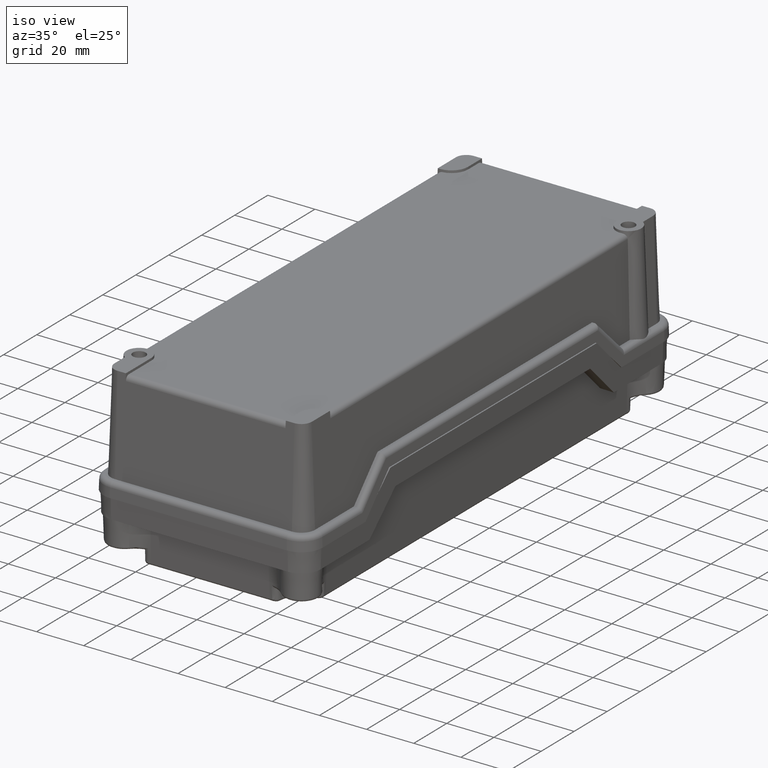
[diagram: clean part render]
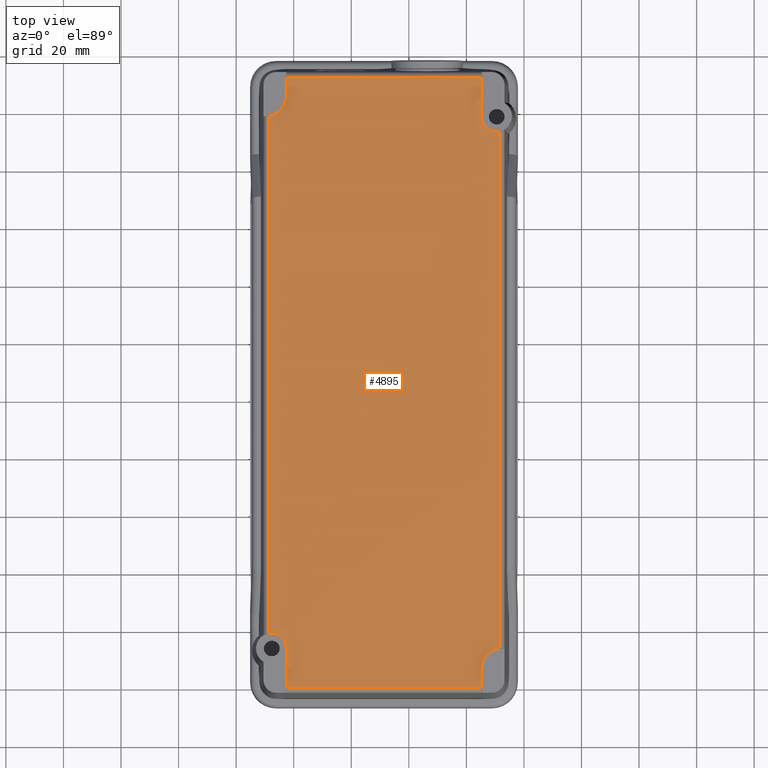
[diagram: tour spotlight — one face highlighted and labeled with its STEP entity id]
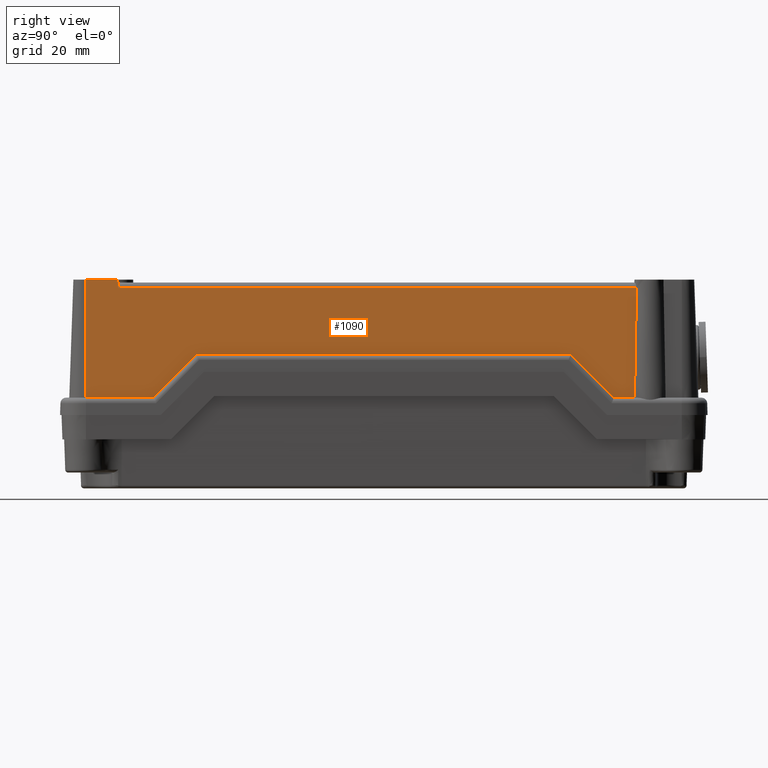
[diagram: tour spotlight — one face highlighted and labeled with its STEP entity id]
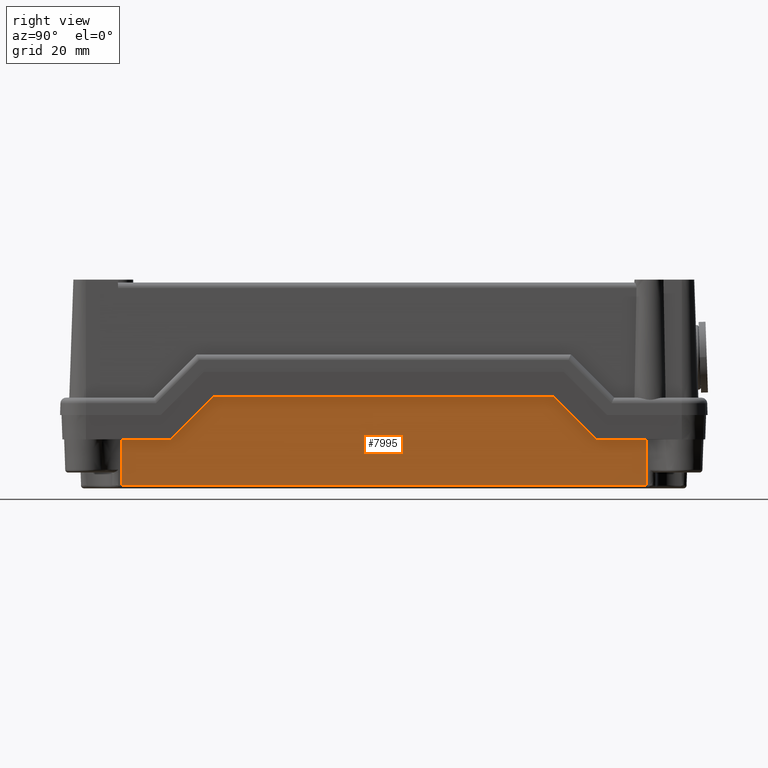
[diagram: tour spotlight — one face highlighted and labeled with its STEP entity id]
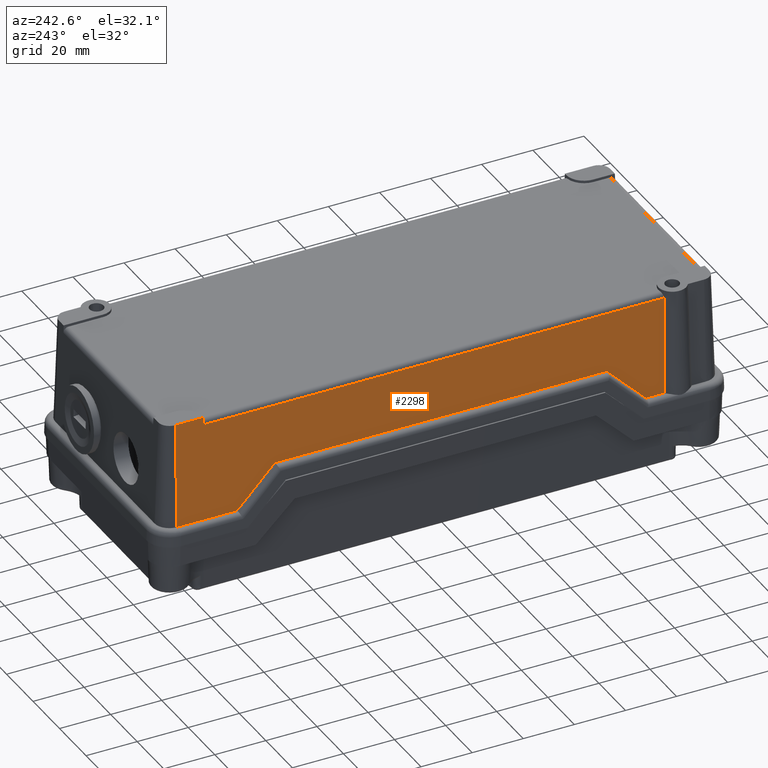
[diagram: tour spotlight — one face highlighted and labeled with its STEP entity id]
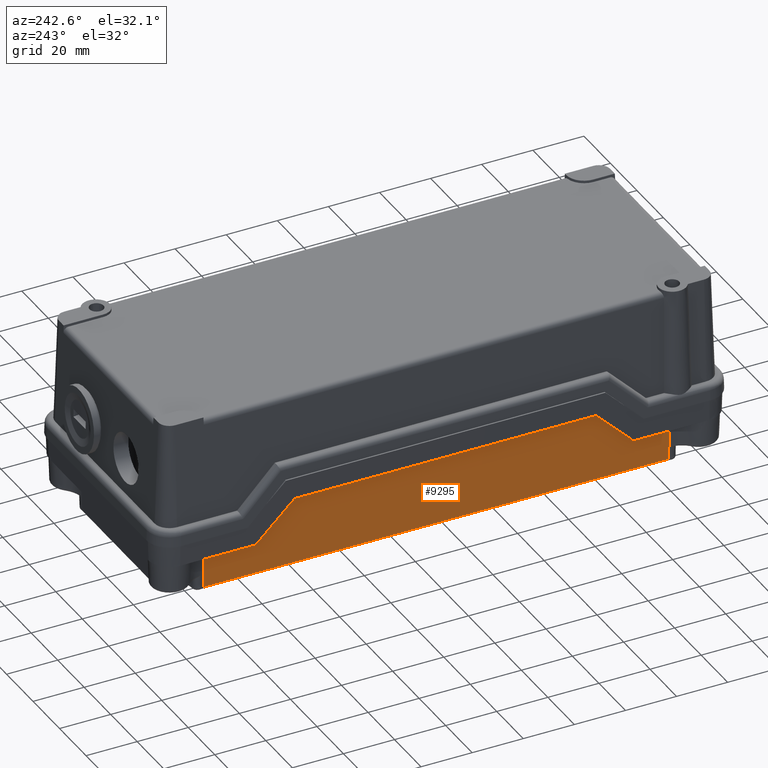
[diagram: tour spotlight — one face highlighted and labeled with its STEP entity id]
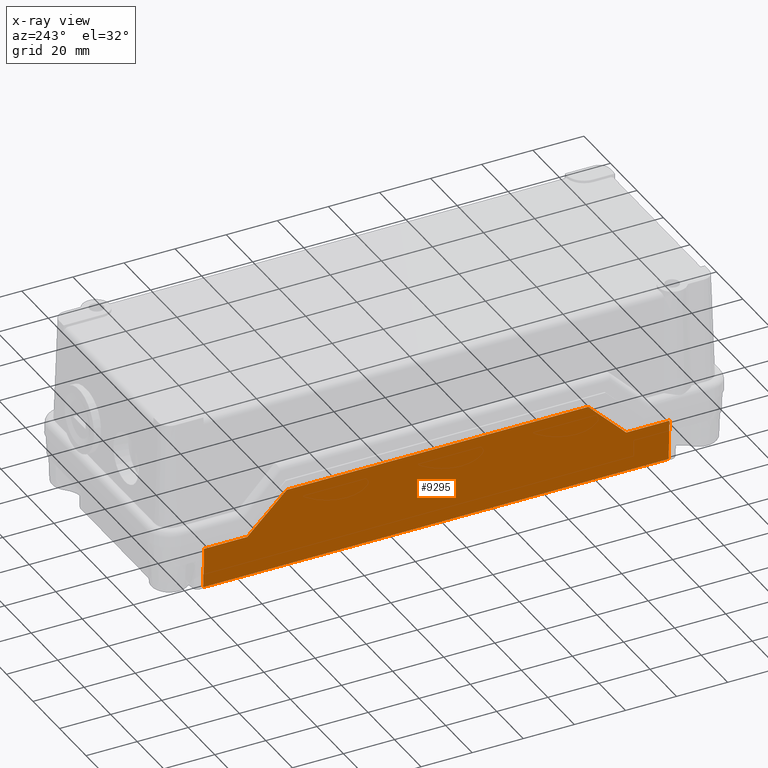
[diagram: x-ray of the same camera — body ghosted, this tour face saturated]
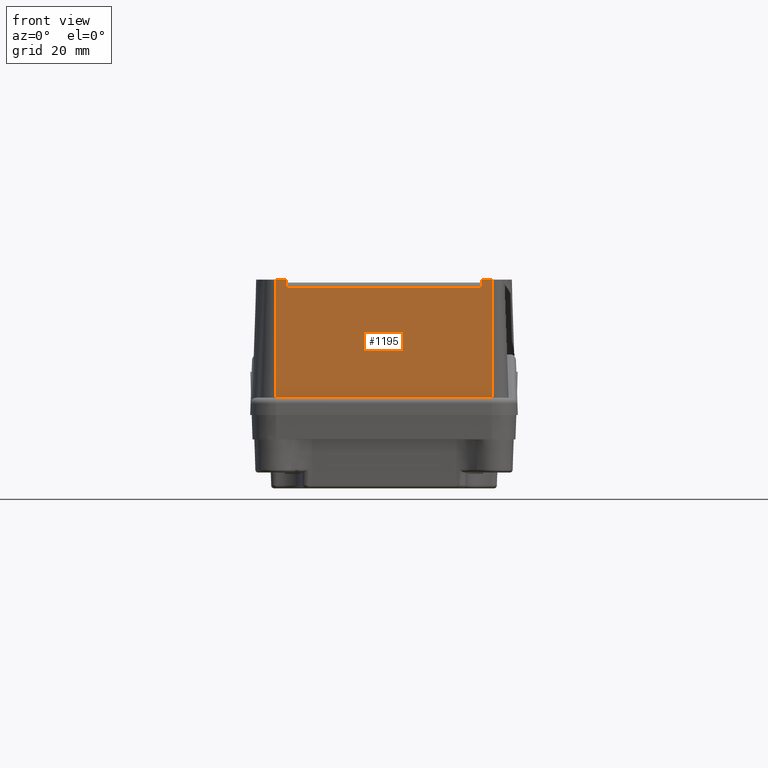
[diagram: tour spotlight — one face highlighted and labeled with its STEP entity id]
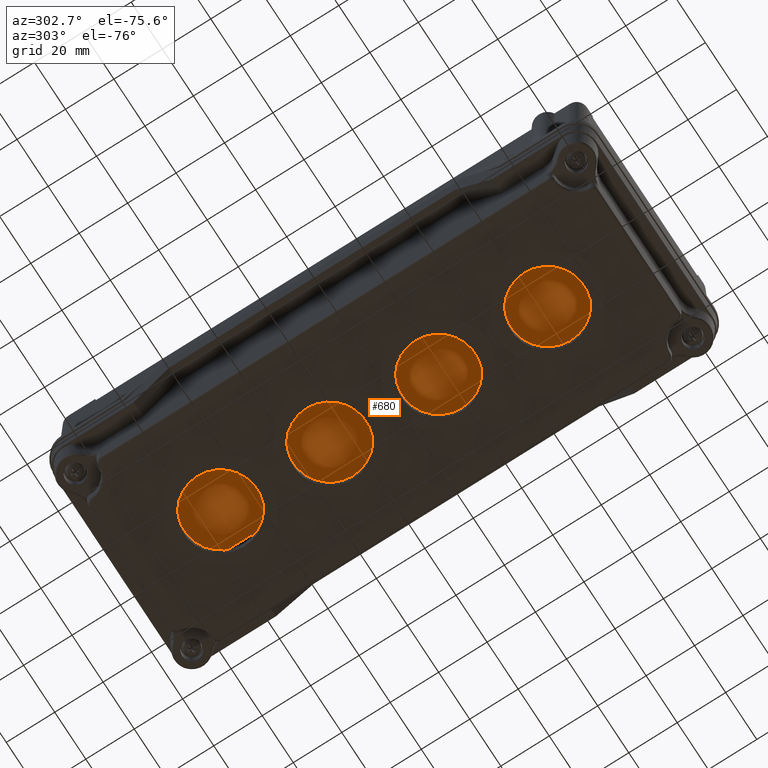
[diagram: tour spotlight — one face highlighted and labeled with its STEP entity id]
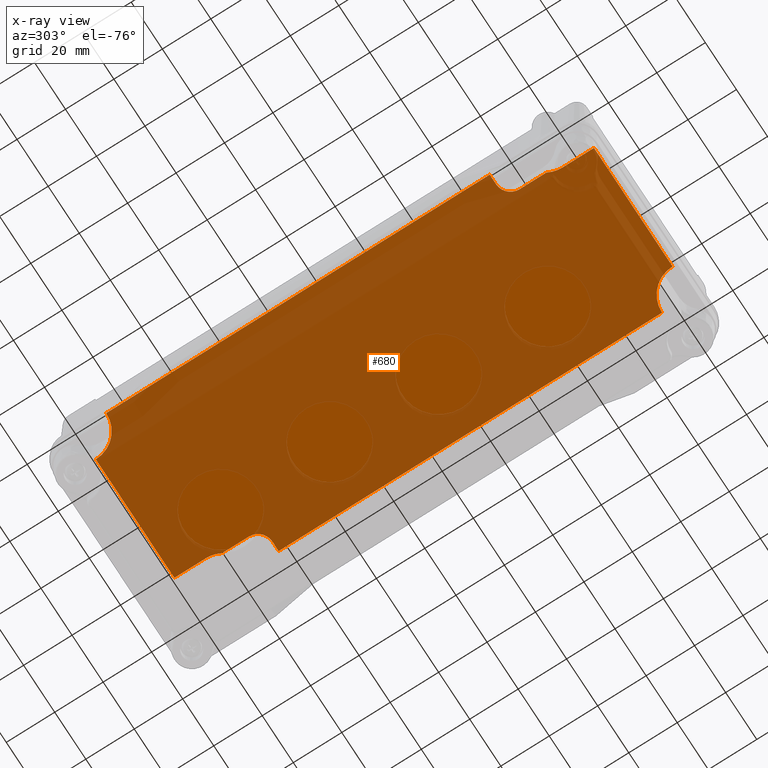
[diagram: x-ray of the same camera — body ghosted, this tour face saturated]
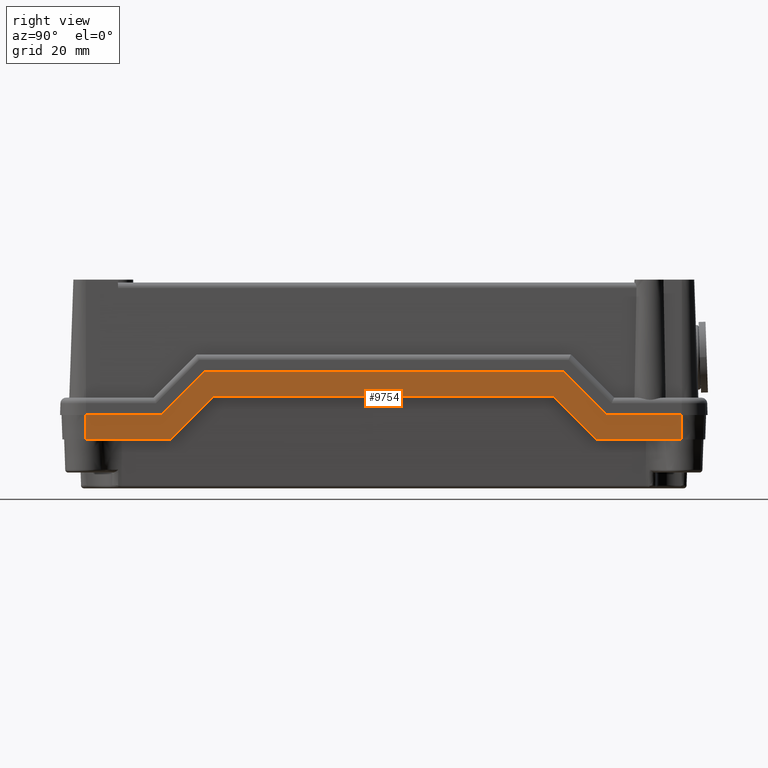
[diagram: tour spotlight — one face highlighted and labeled with its STEP entity id]
A machine part: a face-by-face anatomy tour. The part has 515 B-rep faces; the first image is the clean iso view, then the 8 largest visible faces are spotlighted one at a time (largest first), each with its STEP entity span.

Face 1 — top view, entity #4895. In plain terms, the highlighted planar face has unit normal (0, 0, 1).
Definition (entity closure, byte-faithful):
#834=CARTESIAN_POINT('',(65.278736166263982,191.561854063201880,46.000000000000007));
#835=VERTEX_POINT('',#834);
#853=CARTESIAN_POINT('',(-2.508553040495264,191.561854063201910,46.000000000000007));
#854=VERTEX_POINT('',#853);
#862=CARTESIAN_POINT('',(-2.508553040495264,191.561854063201910,46.000000000000007));
#863=DIRECTION('',(1.0,0.0,0.0));
#864=VECTOR('',#863,67.787289206759240);
#865=LINE('',#862,#864);
#866=EDGE_CURVE('',#854,#835,#865,.T.);
#945=CARTESIAN_POINT('',(71.347358616649842,172.703747191197440,46.000000000000007));
#946=VERTEX_POINT('',#945);
#965=CARTESIAN_POINT('',(71.347358616649842,-6.856296005356006,46.000000000000007));
#966=VERTEX_POINT('',#965);
#967=CARTESIAN_POINT('',(71.347358616649842,172.703747191197440,46.000000000000007));
#968=DIRECTION('',(0.0,-1.0,0.0));
#969=VECTOR('',#968,179.560043196553440);
#970=LINE('',#967,#969);
#971=EDGE_CURVE('',#946,#966,#970,.T.);
#1096=CARTESIAN_POINT('',(-2.508553040495217,-20.362680044328968,46.000000000000007));
#1097=VERTEX_POINT('',#1096);
#1115=CARTESIAN_POINT('',(65.278736166263997,-20.362680044328968,46.000000000000007));
#1116=VERTEX_POINT('',#1115);
#1124=CARTESIAN_POINT('',(65.278736166263997,-20.362680044328968,46.000000000000007));
#1125=DIRECTION('',(-1.0,0.0,0.0));
#1126=VECTOR('',#1125,67.787289206759212);
#1127=LINE('',#1124,#1126);
#1128=EDGE_CURVE('',#1116,#1097,#1127,.T.);
#2162=CARTESIAN_POINT('',(-8.577175490881078,-1.504573172324474,46.000000000000007));
#2163=VERTEX_POINT('',#2162);
#2182=CARTESIAN_POINT('',(-8.577175490881114,178.055470024228950,46.000000000000007));
#2183=VERTEX_POINT('',#2182);
#2184=CARTESIAN_POINT('',(-8.577175490881078,-1.504573172324474,46.000000000000007));
#2185=DIRECTION('',(0.0,1.0,0.0));
#2186=VECTOR('',#2185,179.560043196553440);
#2187=LINE('',#2184,#2186);
#2188=EDGE_CURVE('',#2163,#2183,#2187,.T.);
#3880=CARTESIAN_POINT('',(65.278736166263968,177.880232871740650,46.000000000000007));
#3881=VERTEX_POINT('',#3880);
#3888=CARTESIAN_POINT('',(70.520797520908872,177.880232871740650,46.000000000000007));
#3889=DIRECTION('',(0.0,0.0,-1.0));
#3890=DIRECTION('',(-1.0,0.0,0.0));
#3891=AXIS2_PLACEMENT_3D('',#3888,#3889,#3890);
#3892=CIRCLE('',#3891,5.242061354644884);
#3893=EDGE_CURVE('',#946,#3881,#3892,.T.);
#3918=CARTESIAN_POINT('',(65.278736166263968,177.880232871740650,46.000000000000007));
#3919=DIRECTION('',(0.0,1.0,0.0));
#3920=VECTOR('',#3919,13.681621191461232);
#3921=LINE('',#3918,#3920);
#3922=EDGE_CURVE('',#3881,#835,#3921,.T.);
#3982=CARTESIAN_POINT('',(-2.508553040495225,-6.681058852867699,46.000000000000007));
#3983=VERTEX_POINT('',#3982);
#3990=CARTESIAN_POINT('',(-7.750614395140129,-6.681058852867703,46.000000000000007));
#3991=DIRECTION('',(0.0,0.0,-1.0));
#3992=DIRECTION('',(1.0,0.0,0.0));
#3993=AXIS2_PLACEMENT_3D('',#3990,#3991,#3992);
#3994=CIRCLE('',#3993,5.242061354644905);
#3995=EDGE_CURVE('',#2163,#3983,#3994,.T.);
#4020=CARTESIAN_POINT('',(-2.508553040495225,-6.681058852867699,46.000000000000007));
#4021=DIRECTION('',(0.0,-1.0,0.0));
#4022=VECTOR('',#4021,13.681621191461268);
#4023=LINE('',#4020,#4022);
#4024=EDGE_CURVE('',#3983,#1097,#4023,.T.);
#4081=CARTESIAN_POINT('',(-2.508553040495262,184.993231612816060,46.000000000000007));
#4082=VERTEX_POINT('',#4081);
#4089=CARTESIAN_POINT('',(-2.508553040495264,191.561854063201910,46.000000000000007));
#4090=DIRECTION('',(0.0,-1.0,0.0));
#4091=VECTOR('',#4090,6.568622450385846);
#4092=LINE('',#4089,#4091);
#4093=EDGE_CURVE('',#854,#4082,#4092,.T.);
#4121=CARTESIAN_POINT('',(-9.508553040495261,184.993231612816060,46.000000000000007));
#4122=DIRECTION('',(0.0,0.0,-1.0));
#4123=DIRECTION('',(0.0,-1.0,0.0));
#4124=AXIS2_PLACEMENT_3D('',#4121,#4122,#4123);
#4125=CIRCLE('',#4124,7.000000000000001);
#4126=EDGE_CURVE('',#4082,#2183,#4125,.T.);
#4182=CARTESIAN_POINT('',(65.278736166263997,-13.794057593943121,46.000000000000007));
#4183=VERTEX_POINT('',#4182);
#4190=CARTESIAN_POINT('',(65.278736166263997,-20.362680044328968,46.000000000000007));
#4191=DIRECTION('',(0.0,1.0,0.0));
#4192=VECTOR('',#4191,6.568622450385847);
#4193=LINE('',#4190,#4192);
#4194=EDGE_CURVE('',#1116,#4183,#4193,.T.);
#4222=CARTESIAN_POINT('',(72.278736166263997,-13.794057593943116,46.000000000000007));
#4223=DIRECTION('',(0.0,0.0,-1.0));
#4224=DIRECTION('',(0.0,1.0,0.0));
#4225=AXIS2_PLACEMENT_3D('',#4222,#4223,#4224);
#4226=CIRCLE('',#4225,7.000000000000001);
#4227=EDGE_CURVE('',#4183,#966,#4226,.T.);
#4876=CARTESIAN_POINT('',(31.385091562884369,85.599587009436462,46.000000000000007));
#4877=DIRECTION('',(0.0,0.0,1.0));
#4878=DIRECTION('',(1.0,0.0,0.0));
#4879=AXIS2_PLACEMENT_3D('',#4876,#4877,#4878);
#4880=PLANE('',#4879);
#4881=ORIENTED_EDGE('',*,*,#866,.F.);
#4882=ORIENTED_EDGE('',*,*,#4093,.T.);
#4883=ORIENTED_EDGE('',*,*,#4126,.T.);
#4884=ORIENTED_EDGE('',*,*,#2188,.F.);
#4885=ORIENTED_EDGE('',*,*,#3995,.T.);
#4886=ORIENTED_EDGE('',*,*,#4024,.T.);
#4887=ORIENTED_EDGE('',*,*,#1128,.F.);
#4888=ORIENTED_EDGE('',*,*,#4194,.T.);
#4889=ORIENTED_EDGE('',*,*,#4227,.T.);
#4890=ORIENTED_EDGE('',*,*,#971,.F.);
#4891=ORIENTED_EDGE('',*,*,#3893,.T.);
#4892=ORIENTED_EDGE('',*,*,#3922,.T.);
#4893=EDGE_LOOP('',(#4881,#4882,#4883,#4884,#4885,#4886,#4887,#4888,#4889,#4890,#4891,#4892));
#4894=FACE_OUTER_BOUND('',#4893,.T.);
#4895=ADVANCED_FACE('',(#4894),#4880,.T.);

Face 2 — right view, entity #1090. In plain terms, the highlighted planar face has unit normal (0.9994, 0, 0.0349).
Definition (entity closure, byte-faithful):
#985=CARTESIAN_POINT('',(73.346140270688039,-6.726653489519086,44.069798993405001));
#986=VERTEX_POINT('',#985);
#994=CARTESIAN_POINT('',(73.346140270688039,173.384910030896780,44.069798993405001));
#995=VERTEX_POINT('',#994);
#996=CARTESIAN_POINT('',(73.346140270688039,-6.726653489519086,44.069798993405001));
#997=DIRECTION('',(0.0,1.0,0.0));
#998=VECTOR('',#997,180.111563520415870);
#999=LINE('',#996,#998);
#1000=EDGE_CURVE('',#986,#995,#999,.T.);
#1012=CARTESIAN_POINT('',(73.278736166263997,-17.900412990563549,46.000000000000007));
#1013=DIRECTION('',(0.999390827019096,4.288103E-017,0.034899496702501));
#1014=DIRECTION('',(0.0,-1.0,0.0));
#1015=AXIS2_PLACEMENT_3D('',#1012,#1013,#1014);
#1016=PLANE('',#1015);
#1017=ORIENTED_EDGE('',*,*,#1000,.F.);
#1018=CARTESIAN_POINT('',(73.243815396772249,-6.828978363434865,47.0));
#1019=VERTEX_POINT('',#1018);
#1020=CARTESIAN_POINT('',(73.346140270688039,-6.726653489519086,44.069798993405001));
#1021=DIRECTION('',(-0.034878262742374,-0.034878262742371,0.998782765958718));
#1022=VECTOR('',#1021,2.933772093857003);
#1023=LINE('',#1020,#1022);
#1024=EDGE_CURVE('',#986,#1019,#1023,.T.);
#1025=ORIENTED_EDGE('',*,*,#1024,.T.);
#1026=CARTESIAN_POINT('',(73.243815396772249,-17.900412990563549,47.0));
#1027=VERTEX_POINT('',#1026);
#1028=CARTESIAN_POINT('',(73.243815396772249,-6.828978363434865,47.0));
#1029=DIRECTION('',(0.0,-1.0,0.0));
#1030=VECTOR('',#1029,11.071434627128685);
#1031=LINE('',#1028,#1030);
#1032=EDGE_CURVE('',#1019,#1027,#1031,.T.);
#1033=ORIENTED_EDGE('',*,*,#1032,.T.);
#1034=CARTESIAN_POINT('',(74.675566945933895,-17.900412990563549,6.000000000000005));
#1035=VERTEX_POINT('',#1034);
#1036=CARTESIAN_POINT('',(74.675566945933895,-17.900412990563549,6.000000000000005));
#1037=DIRECTION('',(-0.034899496702501,0.0,0.999390827019096));
#1038=VECTOR('',#1037,41.024991316251686);
#1039=LINE('',#1036,#1038);
#1040=EDGE_CURVE('',#1035,#1027,#1039,.T.);
#1041=ORIENTED_EDGE('',*,*,#1040,.F.);
#1042=CARTESIAN_POINT('',(74.675566945931934,5.598717935197845,6.000000000000001));
#1043=VERTEX_POINT('',#1042);
#1044=CARTESIAN_POINT('',(74.675566945933895,-17.900412990563549,6.000000000000005));
#1045=DIRECTION('',(0.0,1.0,0.0));
#1046=VECTOR('',#1045,23.499130925761392);
#1047=LINE('',#1044,#1046);
#1048=EDGE_CURVE('',#1035,#1043,#1047,.T.);
#1049=ORIENTED_EDGE('',*,*,#1048,.T.);
#1050=CARTESIAN_POINT('',(74.151211069077121,20.614305635197852,21.015587699999983));
#1051=VERTEX_POINT('',#1050);
#1052=CARTESIAN_POINT('',(74.675566945931934,5.598717935197845,6.000000000000001));
#1053=DIRECTION('',(-0.024685188407831,0.706891307583164,0.706891307583163));
#1054=VECTOR('',#1053,21.241720670378246);
#1055=LINE('',#1052,#1054);
#1056=EDGE_CURVE('',#1043,#1051,#1055,.T.);
#1057=ORIENTED_EDGE('',*,*,#1056,.T.);
#1058=CARTESIAN_POINT('',(74.151211069077220,150.584868383675000,21.015587699999983));
#1059=VERTEX_POINT('',#1058);
#1060=CARTESIAN_POINT('',(74.151211069077121,20.614305635197852,21.015587699999983));
#1061=DIRECTION('',(0.0,1.0,0.0));
#1062=VECTOR('',#1061,129.970562748477160);
#1063=LINE('',#1060,#1062);
#1064=EDGE_CURVE('',#1051,#1059,#1063,.T.);
#1065=ORIENTED_EDGE('',*,*,#1064,.T.);
#1066=CARTESIAN_POINT('',(74.675566945932061,165.600456083674910,6.000000000000005));
#1067=VERTEX_POINT('',#1066);
#1068=CARTESIAN_POINT('',(74.151211069077220,150.584868383675000,21.015587699999983));
#1069=DIRECTION('',(0.024685188407833,0.706891307583162,-0.706891307583165));
#1070=VECTOR('',#1069,21.241720670378175);
#1071=LINE('',#1068,#1070);
#1072=EDGE_CURVE('',#1059,#1067,#1071,.T.);
#1073=ORIENTED_EDGE('',*,*,#1072,.T.);
#1074=CARTESIAN_POINT('',(74.675566945933880,172.699763327977220,6.000000000000005));
#1075=VERTEX_POINT('',#1074);
#1076=CARTESIAN_POINT('',(74.675566945932061,165.600456083674910,6.000000000000005));
#1077=DIRECTION('',(2.562207E-013,1.0,0.0));
#1078=VECTOR('',#1077,7.099307244302310);
#1079=LINE('',#1076,#1078);
#1080=EDGE_CURVE('',#1067,#1075,#1079,.T.);
#1081=ORIENTED_EDGE('',*,*,#1080,.T.);
#1082=CARTESIAN_POINT('',(74.675566945933909,172.699763327977220,6.000000000000005));
#1083=CARTESIAN_POINT('',(73.965826555859323,173.042336679441180,26.324305575290893));
#1084=CARTESIAN_POINT('',(73.346140270688039,173.384910030896780,44.069798993405001));
#1085=B_SPLINE_CURVE_WITH_KNOTS('',2,(#1082,#1083,#1084),.UNSPECIFIED.,.F.,.U.,(3,3),(0.0,3.795830122196265),.UNSPECIFIED.);
#1086=EDGE_CURVE('',#1075,#995,#1085,.T.);
#1087=ORIENTED_EDGE('',*,*,#1086,.T.);
#1088=EDGE_LOOP('',(#1017,#1025,#1033,#1041,#1049,#1057,#1065,#1073,#1081,#1087));
#1089=FACE_OUTER_BOUND('',#1088,.T.);
#1090=ADVANCED_FACE('',(#1089),#1016,.T.);

Face 3 — right view, entity #7995. In plain terms, the highlighted planar face has unit normal (0.9994, -0, -0.0349).
Definition (entity closure, byte-faithful):
#5753=CARTESIAN_POINT('',(-1.896083390745195,127.261391683954860,23.499999999999986));
#5754=VERTEX_POINT('',#5753);
#5762=CARTESIAN_POINT('',(-1.336132361597504,127.261391683954880,39.534899496702501));
#5763=VERTEX_POINT('',#5762);
#5764=CARTESIAN_POINT('',(-1.336132361597504,127.261391683954880,39.534899496702501));
#5765=DIRECTION('',(-0.034899496702501,-1.771411E-015,-0.999390827019096));
#5766=VECTOR('',#5765,16.044673478272912);
#5767=LINE('',#5764,#5766);
#5768=EDGE_CURVE('',#5763,#5754,#5767,.T.);
#5880=CARTESIAN_POINT('',(-1.336132361597469,-54.857181445621052,39.534899496702501));
#5881=VERTEX_POINT('',#5880);
#5882=CARTESIAN_POINT('',(-1.336132361597504,127.261391683954880,39.534899496702501));
#5883=DIRECTION('',(0.0,-1.0,0.0));
#5884=VECTOR('',#5883,182.118573129575940);
#5885=LINE('',#5882,#5884);
#5886=EDGE_CURVE('',#5763,#5881,#5885,.T.);
#7912=CARTESIAN_POINT('',(-1.896083390745133,-54.857181445621052,23.499999999999986));
#7913=VERTEX_POINT('',#7912);
#7914=CARTESIAN_POINT('',(-1.336132361597469,-54.857181445621052,39.534899496702501));
#7915=DIRECTION('',(-0.034899496702499,0.0,-0.999390827019096));
#7916=VECTOR('',#7915,16.044673478272909);
#7917=LINE('',#7914,#7916);
#7918=EDGE_CURVE('',#5881,#7913,#7917,.T.);
#7939=CARTESIAN_POINT('',(-1.302430309385483,127.261391683954880,40.500000000000000));
#7940=DIRECTION('',(-0.999390827019096,-1.827732E-016,0.034899496702501));
#7941=DIRECTION('',(0.0,1.0,0.0));
#7942=AXIS2_PLACEMENT_3D('',#7939,#7940,#7941);
#7943=PLANE('',#7942);
#7944=ORIENTED_EDGE('',*,*,#5886,.F.);
#7945=ORIENTED_EDGE('',*,*,#5768,.T.);
#7946=CARTESIAN_POINT('',(-1.896083390745255,110.387150288122410,23.499999999999986));
#7947=VERTEX_POINT('',#7946);
#7948=CARTESIAN_POINT('',(-1.896083390745195,127.261391683954860,23.499999999999986));
#7949=DIRECTION('',(0.0,-1.0,0.0));
#7950=VECTOR('',#7949,16.874241395832442);
#7951=LINE('',#7948,#7950);
#7952=EDGE_CURVE('',#5754,#7947,#7951,.T.);
#7953=ORIENTED_EDGE('',*,*,#7952,.T.);
#7954=CARTESIAN_POINT('',(-1.903391239965790,110.177625671171950,23.290730578767615));
#7955=VERTEX_POINT('',#7954);
#7956=CARTESIAN_POINT('',(-1.896083390745255,110.387150288122410,23.499999999999986));
#7957=DIRECTION('',(-0.024670150858056,-0.707322189149552,-0.706460688498182));
#7958=VECTOR('',#7957,0.296222315890276);
#7959=LINE('',#7956,#7958);
#7960=EDGE_CURVE('',#7947,#7955,#7959,.T.);
#7961=ORIENTED_EDGE('',*,*,#7960,.T.);
#7962=CARTESIAN_POINT('',(-2.427202782341986,95.177625671171995,8.290730578767606));
#7963=VERTEX_POINT('',#7962);
#7964=CARTESIAN_POINT('',(-1.903391239965790,110.177625671171950,23.290730578767615));
#7965=DIRECTION('',(-0.024685188407831,-0.706891307583163,-0.706891307583165));
#7966=VECTOR('',#7965,21.219669614108639);
#7967=LINE('',#7964,#7966);
#7968=EDGE_CURVE('',#7955,#7963,#7967,.T.);
#7969=ORIENTED_EDGE('',*,*,#7968,.T.);
#7970=CARTESIAN_POINT('',(-2.427202782341915,-22.773415432838210,8.290730578767578));
#7971=VERTEX_POINT('',#7970);
#7972=CARTESIAN_POINT('',(-2.427202782341986,95.177625671171995,8.290730578767606));
#7973=DIRECTION('',(0.0,-1.0,0.0));
#7974=VECTOR('',#7973,117.951041104010200);
#7975=LINE('',#7972,#7974);
#7976=EDGE_CURVE('',#7963,#7971,#7975,.T.);
#7977=ORIENTED_EDGE('',*,*,#7976,.T.);
#7978=CARTESIAN_POINT('',(-1.896083390745163,-37.982684854070648,23.499999999999986));
#7979=VERTEX_POINT('',#7978);
#7980=CARTESIAN_POINT('',(-2.427202782341915,-22.773415432838210,8.290730578767578));
#7981=DIRECTION('',(0.024685188407832,-0.706891307583164,0.706891307583163));
#7982=VECTOR('',#7981,21.515711479367848);
#7983=LINE('',#7980,#7982);
#7984=EDGE_CURVE('',#7971,#7979,#7983,.T.);
#7985=ORIENTED_EDGE('',*,*,#7984,.T.);
#7986=CARTESIAN_POINT('',(-1.896083390745163,-37.982684854070648,23.499999999999986));
#7987=DIRECTION('',(0.0,-1.0,0.0));
#7988=VECTOR('',#7987,16.874496591550404);
#7989=LINE('',#7986,#7988);
#7990=EDGE_CURVE('',#7979,#7913,#7989,.T.);
#7991=ORIENTED_EDGE('',*,*,#7990,.T.);
#7992=ORIENTED_EDGE('',*,*,#7918,.F.);
#7993=EDGE_LOOP('',(#7944,#7945,#7953,#7961,#7969,#7977,#7985,#7991,#7992));
#7994=FACE_OUTER_BOUND('',#7993,.T.);
#7995=ADVANCED_FACE('',(#7994),#7943,.T.);

Face 4 — auxiliary view, entity #2298. In plain terms, the highlighted planar face has unit normal (-0.9994, -0, 0.0349).
Definition (entity closure, byte-faithful):
#2005=CARTESIAN_POINT('',(-11.905383820165135,-1.500589309104239,6.000000000000005));
#2006=VERTEX_POINT('',#2005);
#2014=CARTESIAN_POINT('',(-11.905383820165136,5.598717935197874,6.000000000000001));
#2015=VERTEX_POINT('',#2014);
#2016=CARTESIAN_POINT('',(-11.905383820165136,5.598717935197874,6.000000000000001));
#2017=DIRECTION('',(0.0,-1.0,0.0));
#2018=VECTOR('',#2017,7.099307244302112);
#2019=LINE('',#2016,#2018);
#2020=EDGE_CURVE('',#2015,#2006,#2019,.T.);
#2202=CARTESIAN_POINT('',(-10.575957144919306,177.925827508392020,44.069798993405001));
#2203=VERTEX_POINT('',#2202);
#2211=CARTESIAN_POINT('',(-10.575957144919265,-2.185736012023800,44.069798993404994));
#2212=VERTEX_POINT('',#2211);
#2213=CARTESIAN_POINT('',(-10.575957144919306,177.925827508392020,44.069798993405001));
#2214=DIRECTION('',(0.0,-1.0,0.0));
#2215=VECTOR('',#2214,180.111563520415810);
#2216=LINE('',#2213,#2215);
#2217=EDGE_CURVE('',#2203,#2212,#2216,.T.);
#2229=CARTESIAN_POINT('',(-10.508553040495263,189.099587009436500,46.000000000000007));
#2230=DIRECTION('',(-0.999390827019096,-2.036849E-016,0.034899496702501));
#2231=DIRECTION('',(0.0,1.0,0.0));
#2232=AXIS2_PLACEMENT_3D('',#2229,#2230,#2231);
#2233=PLANE('',#2232);
#2234=ORIENTED_EDGE('',*,*,#2217,.F.);
#2235=CARTESIAN_POINT('',(-10.473632271003510,178.028152382307810,47.0));
#2236=VERTEX_POINT('',#2235);
#2237=CARTESIAN_POINT('',(-10.575957144919306,177.925827508392020,44.069798993405001));
#2238=DIRECTION('',(0.034878262742376,0.034878262742374,0.998782765958718));
#2239=VECTOR('',#2238,2.933772093857004);
#2240=LINE('',#2237,#2239);
#2241=EDGE_CURVE('',#2203,#2236,#2240,.T.);
#2242=ORIENTED_EDGE('',*,*,#2241,.T.);
#2243=CARTESIAN_POINT('',(-10.473632271003513,189.099587009436500,47.0));
#2244=VERTEX_POINT('',#2243);
#2245=CARTESIAN_POINT('',(-10.473632271003510,178.028152382307810,47.0));
#2246=DIRECTION('',(0.0,1.0,0.0));
#2247=VECTOR('',#2246,11.071434627128696);
#2248=LINE('',#2245,#2247);
#2249=EDGE_CURVE('',#2236,#2244,#2248,.T.);
#2250=ORIENTED_EDGE('',*,*,#2249,.T.);
#2251=CARTESIAN_POINT('',(-11.905383820165172,189.099587009436500,6.000000000000005));
#2252=VERTEX_POINT('',#2251);
#2253=CARTESIAN_POINT('',(-10.473632271003513,189.099587009436500,47.0));
#2254=DIRECTION('',(-0.034899496702501,0.0,-0.999390827019096));
#2255=VECTOR('',#2254,41.024991316251686);
#2256=LINE('',#2253,#2255);
#2257=EDGE_CURVE('',#2244,#2252,#2256,.T.);
#2258=ORIENTED_EDGE('',*,*,#2257,.T.);
#2259=CARTESIAN_POINT('',(-11.905383820165166,165.600456083674940,6.000000000000005));
#2260=VERTEX_POINT('',#2259);
#2261=CARTESIAN_POINT('',(-11.905383820165172,189.099587009436500,6.000000000000005));
#2262=DIRECTION('',(0.0,-1.0,0.0));
#2263=VECTOR('',#2262,23.499130925761563);
#2264=LINE('',#2261,#2263);
#2265=EDGE_CURVE('',#2252,#2260,#2264,.T.);
#2266=ORIENTED_EDGE('',*,*,#2265,.T.);
#2267=CARTESIAN_POINT('',(-11.381027943310345,150.584868383675030,21.015587699999983));
#2268=VERTEX_POINT('',#2267);
#2269=CARTESIAN_POINT('',(-11.905383820165166,165.600456083674940,6.000000000000005));
#2270=DIRECTION('',(0.024685188407832,-0.706891307583162,0.706891307583165));
#2271=VECTOR('',#2270,21.241720670378175);
#2272=LINE('',#2269,#2271);
#2273=EDGE_CURVE('',#2260,#2268,#2272,.T.);
#2274=ORIENTED_EDGE('',*,*,#2273,.T.);
#2275=CARTESIAN_POINT('',(-11.381027943310318,20.614305635197884,21.015587699999983));
#2276=VERTEX_POINT('',#2275);
#2277=CARTESIAN_POINT('',(-11.381027943310345,150.584868383675030,21.015587699999983));
#2278=DIRECTION('',(0.0,-1.0,0.0));
#2279=VECTOR('',#2278,129.970562748477140);
#2280=LINE('',#2277,#2279);
#2281=EDGE_CURVE('',#2268,#2276,#2280,.T.);
#2282=ORIENTED_EDGE('',*,*,#2281,.T.);
#2283=CARTESIAN_POINT('',(-11.381027943310318,20.614305635197884,21.015587699999983));
#2284=DIRECTION('',(-0.024685188407832,-0.706891307583164,-0.706891307583163));
#2285=VECTOR('',#2284,21.241720670378250);
#2286=LINE('',#2283,#2285);
#2287=EDGE_CURVE('',#2276,#2015,#2286,.T.);
#2288=ORIENTED_EDGE('',*,*,#2287,.T.);
#2289=ORIENTED_EDGE('',*,*,#2020,.T.);
#2290=CARTESIAN_POINT('',(-11.905383820165131,-1.500589309104238,6.000000000000005));
#2291=CARTESIAN_POINT('',(-11.195643430090493,-1.843162660568200,26.324305575292669));
#2292=CARTESIAN_POINT('',(-10.575957144919265,-2.185736012023800,44.069798993404994));
#2293=B_SPLINE_CURVE_WITH_KNOTS('',2,(#2290,#2291,#2292),.UNSPECIFIED.,.F.,.U.,(3,3),(0.0,3.795830122196244),.UNSPECIFIED.);
#2294=EDGE_CURVE('',#2006,#2212,#2293,.T.);
#2295=ORIENTED_EDGE('',*,*,#2294,.T.);
#2296=EDGE_LOOP('',(#2234,#2242,#2250,#2258,#2266,#2274,#2282,#2288,#2289,#2295));
#2297=FACE_OUTER_BOUND('',#2296,.T.);
#2298=ADVANCED_FACE('',(#2297),#2233,.T.);

Face 5 — auxiliary view, entity #9295. An x-ray twin of the same camera follows (body ghosted, this face saturated) — the face is partly hidden behind the body. In plain terms, the highlighted planar face has unit normal (-0.9994, -0, -0.0349).
Definition (entity closure, byte-faithful):
#5218=CARTESIAN_POINT('',(76.902689413995006,127.261391683954880,39.534899496702501));
#5219=VERTEX_POINT('',#5218);
#5227=CARTESIAN_POINT('',(77.462640443142647,127.261391683954880,23.499999999999986));
#5228=VERTEX_POINT('',#5227);
#5229=CARTESIAN_POINT('',(76.902689413995006,127.261391683954880,39.534899496702501));
#5230=DIRECTION('',(0.034899496702498,0.0,-0.999390827019096));
#5231=VECTOR('',#5230,16.044673478272909);
#5232=LINE('',#5229,#5231);
#5233=EDGE_CURVE('',#5219,#5228,#5232,.T.);
#7427=CARTESIAN_POINT('',(76.902689413995006,-54.857181445620959,39.534899496702501));
#7428=VERTEX_POINT('',#7427);
#7469=CARTESIAN_POINT('',(76.902689413995006,-54.857181445620959,39.534899496702501));
#7470=DIRECTION('',(0.0,1.0,0.0));
#7471=VECTOR('',#7470,182.118573129575850);
#7472=LINE('',#7469,#7471);
#7473=EDGE_CURVE('',#7428,#5219,#7472,.T.);
#7492=CARTESIAN_POINT('',(77.462640443142703,-54.857181445620959,23.499999999999986));
#7493=VERTEX_POINT('',#7492);
#7501=CARTESIAN_POINT('',(76.902689413995006,-54.857181445620959,39.534899496702501));
#7502=DIRECTION('',(0.034899496702501,0.0,-0.999390827019096));
#7503=VECTOR('',#7502,16.044673478272912);
#7504=LINE('',#7501,#7503);
#7505=EDGE_CURVE('',#7428,#7493,#7504,.T.);
#9057=CARTESIAN_POINT('',(77.462640443142703,-37.982684854070619,23.499999999999986));
#9058=VERTEX_POINT('',#9057);
#9065=CARTESIAN_POINT('',(77.462640443142703,-54.857181445620959,23.499999999999986));
#9066=DIRECTION('',(0.0,1.0,0.0));
#9067=VECTOR('',#9066,16.874496591550340);
#9068=LINE('',#9065,#9067);
#9069=EDGE_CURVE('',#7493,#9058,#9068,.T.);
#9108=CARTESIAN_POINT('',(77.993759834739450,-22.773415432838181,8.290730578767578));
#9109=VERTEX_POINT('',#9108);
#9116=CARTESIAN_POINT('',(77.993759834739450,-22.773415432838181,8.290730578767578));
#9117=DIRECTION('',(-0.024685188407832,-0.706891307583164,0.706891307583163));
#9118=VECTOR('',#9117,21.515711479367848);
#9119=LINE('',#9116,#9118);
#9120=EDGE_CURVE('',#9109,#9058,#9119,.T.);
#9130=CARTESIAN_POINT('',(77.993759834739436,95.177625671172009,8.290730578767606));
#9131=VERTEX_POINT('',#9130);
#9132=CARTESIAN_POINT('',(77.993759834739436,95.177625671172009,8.290730578767606));
#9133=DIRECTION('',(0.0,-1.0,0.0));
#9134=VECTOR('',#9133,117.951041104010190);
#9135=LINE('',#9132,#9134);
#9136=EDGE_CURVE('',#9131,#9109,#9135,.T.);
#9161=CARTESIAN_POINT('',(77.469948292363227,110.177625671171970,23.290730578767615));
#9162=VERTEX_POINT('',#9161);
#9163=CARTESIAN_POINT('',(77.469948292363227,110.177625671171970,23.290730578767615));
#9164=DIRECTION('',(0.024685188407831,-0.706891307583163,-0.706891307583165));
#9165=VECTOR('',#9164,21.219669614108639);
#9166=LINE('',#9163,#9165);
#9167=EDGE_CURVE('',#9162,#9131,#9166,.T.);
#9192=CARTESIAN_POINT('',(77.462640443142703,110.387150288122460,23.499999999999986));
#9193=VERTEX_POINT('',#9192);
#9200=CARTESIAN_POINT('',(77.462640443142703,110.387150288122460,23.499999999999986));
#9201=DIRECTION('',(0.024670150858015,-0.707322189149601,-0.706460688498135));
#9202=VECTOR('',#9201,0.296222315890296);
#9203=LINE('',#9200,#9202);
#9204=EDGE_CURVE('',#9193,#9162,#9203,.T.);
#9229=CARTESIAN_POINT('',(77.462640443142703,110.387150288122460,23.499999999999986));
#9230=DIRECTION('',(0.0,1.0,0.0));
#9231=VECTOR('',#9230,16.874241395832428);
#9232=LINE('',#9229,#9231);
#9233=EDGE_CURVE('',#9193,#5228,#9232,.T.);
#9279=CARTESIAN_POINT('',(76.868987361782985,-54.857181445620959,40.500000000000000));
#9280=DIRECTION('',(0.999390827019096,0.0,0.034899496702501));
#9281=DIRECTION('',(0.0,-1.0,0.0));
#9282=AXIS2_PLACEMENT_3D('',#9279,#9280,#9281);
#9283=PLANE('',#9282);
#9284=ORIENTED_EDGE('',*,*,#7473,.F.);
#9285=ORIENTED_EDGE('',*,*,#7505,.T.);
#9286=ORIENTED_EDGE('',*,*,#9069,.T.);
#9287=ORIENTED_EDGE('',*,*,#9120,.F.);
#9288=ORIENTED_EDGE('',*,*,#9136,.F.);
#9289=ORIENTED_EDGE('',*,*,#9167,.F.);
#9290=ORIENTED_EDGE('',*,*,#9204,.F.);
#9291=ORIENTED_EDGE('',*,*,#9233,.T.);
#9292=ORIENTED_EDGE('',*,*,#5233,.F.);
#9293=EDGE_LOOP('',(#9284,#9285,#9286,#9287,#9288,#9289,#9290,#9291,#9292));
#9294=FACE_OUTER_BOUND('',#9293,.T.);
#9295=ADVANCED_FACE('',(#9294),#9283,.T.);

Face 6 — front view, entity #1195. In plain terms, the highlighted planar face has unit normal (0, -0.9994, 0.0349).
Definition (entity closure, byte-faithful):
#1098=CARTESIAN_POINT('',(-2.441148936071174,-22.361461698367158,44.069798993405001));
#1099=VERTEX_POINT('',#1098);
#1107=CARTESIAN_POINT('',(65.211332061839954,-22.361461698367158,44.069798993405001));
#1108=VERTEX_POINT('',#1107);
#1109=CARTESIAN_POINT('',(-2.441148936071174,-22.361461698367158,44.069798993405001));
#1110=DIRECTION('',(1.0,0.0,0.0));
#1111=VECTOR('',#1110,67.652480997911127);
#1112=LINE('',#1109,#1111);
#1113=EDGE_CURVE('',#1099,#1108,#1112,.T.);
#1133=CARTESIAN_POINT('',(-6.114908437115658,-22.294057593943116,46.000000000000007));
#1134=DIRECTION('',(0.0,-0.999390827019096,0.034899496702501));
#1135=DIRECTION('',(-1.0,0.0,0.0));
#1136=AXIS2_PLACEMENT_3D('',#1133,#1134,#1135);
#1137=PLANE('',#1136);
#1138=CARTESIAN_POINT('',(65.313656935755745,-22.259136824451371,47.0));
#1139=VERTEX_POINT('',#1138);
#1140=CARTESIAN_POINT('',(65.211332061839954,-22.361461698367158,44.069798993405001));
#1141=DIRECTION('',(0.034878262742374,0.034878262742373,0.998782765958718));
#1142=VECTOR('',#1141,2.933772093857004);
#1143=LINE('',#1140,#1142);
#1144=EDGE_CURVE('',#1108,#1139,#1143,.T.);
#1145=ORIENTED_EDGE('',*,*,#1144,.F.);
#1146=ORIENTED_EDGE('',*,*,#1113,.F.);
#1147=CARTESIAN_POINT('',(-2.543473809986963,-22.259136824451371,47.0));
#1148=VERTEX_POINT('',#1147);
#1149=CARTESIAN_POINT('',(-2.441148936071174,-22.361461698367158,44.069798993405001));
#1150=DIRECTION('',(-0.034878262742374,0.034878262742373,0.998782765958718));
#1151=VECTOR('',#1150,2.933772093857004);
#1152=LINE('',#1149,#1151);
#1153=EDGE_CURVE('',#1099,#1148,#1152,.T.);
#1154=ORIENTED_EDGE('',*,*,#1153,.T.);
#1155=CARTESIAN_POINT('',(-6.114908437115658,-22.259136824451375,47.0));
#1156=VERTEX_POINT('',#1155);
#1157=CARTESIAN_POINT('',(-2.543473809986963,-22.259136824451371,47.0));
#1158=DIRECTION('',(-1.0,0.0,0.0));
#1159=VECTOR('',#1158,3.571434627128695);
#1160=LINE('',#1157,#1159);
#1161=EDGE_CURVE('',#1148,#1156,#1160,.T.);
#1162=ORIENTED_EDGE('',*,*,#1161,.T.);
#1163=CARTESIAN_POINT('',(-6.114908437115658,-23.690888373613028,6.000000000000005));
#1164=VERTEX_POINT('',#1163);
#1165=CARTESIAN_POINT('',(-6.114908437115658,-23.690888373613028,6.000000000000005));
#1166=DIRECTION('',(0.0,0.034899496702501,0.999390827019096));
#1167=VECTOR('',#1166,41.024991316251686);
#1168=LINE('',#1165,#1167);
#1169=EDGE_CURVE('',#1164,#1156,#1168,.T.);
#1170=ORIENTED_EDGE('',*,*,#1169,.F.);
#1171=CARTESIAN_POINT('',(68.885091562884426,-23.690888373613028,6.000000000000005));
#1172=VERTEX_POINT('',#1171);
#1173=CARTESIAN_POINT('',(-6.114908437115658,-23.690888373613028,6.000000000000005));
#1174=DIRECTION('',(1.0,0.0,0.0));
#1175=VECTOR('',#1174,75.000000000000085);
#1176=LINE('',#1173,#1175);
#1177=EDGE_CURVE('',#1164,#1172,#1176,.T.);
#1178=ORIENTED_EDGE('',*,*,#1177,.T.);
#1179=CARTESIAN_POINT('',(68.885091562884426,-22.259136824451371,47.0));
#1180=VERTEX_POINT('',#1179);
#1181=CARTESIAN_POINT('',(68.885091562884426,-23.690888373613028,6.000000000000005));
#1182=DIRECTION('',(0.0,0.034899496702501,0.999390827019096));
#1183=VECTOR('',#1182,41.024991316251686);
#1184=LINE('',#1181,#1183);
#1185=EDGE_CURVE('',#1172,#1180,#1184,.T.);
#1186=ORIENTED_EDGE('',*,*,#1185,.T.);
#1187=CARTESIAN_POINT('',(68.885091562884426,-22.259136824451371,47.0));
#1188=DIRECTION('',(-1.0,0.0,0.0));
#1189=VECTOR('',#1188,3.571434627128681);
#1190=LINE('',#1187,#1189);
#1191=EDGE_CURVE('',#1180,#1139,#1190,.T.);
#1192=ORIENTED_EDGE('',*,*,#1191,.T.);
#1193=EDGE_LOOP('',(#1145,#1146,#1154,#1162,#1170,#1178,#1186,#1192));
#1194=FACE_OUTER_BOUND('',#1193,.T.);
#1195=ADVANCED_FACE('',(#1194),#1137,.T.);

Face 7 — auxiliary view, entity #680. An x-ray twin of the same camera follows (body ghosted, this face saturated) — the face is partly hidden behind the body. In plain terms, the highlighted planar face has unit normal (0, 0, 1).
Definition (entity closure, byte-faithful):
#336=CARTESIAN_POINT('',(4.385091562884541,12.278495355232701,40.0));
#337=VERTEX_POINT('',#336);
#344=CARTESIAN_POINT('',(4.385091562884538,1.278495355232701,40.0));
#345=VERTEX_POINT('',#344);
#346=CARTESIAN_POINT('',(4.385091562884538,1.278495355232701,40.0));
#347=DIRECTION('',(0.0,1.0,0.0));
#348=VECTOR('',#347,11.0);
#349=LINE('',#346,#348);
#350=EDGE_CURVE('',#345,#337,#349,.T.);
#375=CARTESIAN_POINT('',(-1.614908437115456,18.278495355232707,40.0));
#376=VERTEX_POINT('',#375);
#383=CARTESIAN_POINT('',(-1.614908437115459,12.278495355232703,40.0));
#384=DIRECTION('',(0.0,0.0,1.0));
#385=DIRECTION('',(0.0,1.0,0.0));
#386=AXIS2_PLACEMENT_3D('',#383,#384,#385);
#387=CIRCLE('',#386,6.000000000000001);
#388=EDGE_CURVE('',#337,#376,#387,.T.);
#407=CARTESIAN_POINT('',(-5.614908437115457,18.278495355232707,40.0));
#408=VERTEX_POINT('',#407);
#415=CARTESIAN_POINT('',(-1.614908437115456,18.278495355232707,40.0));
#416=DIRECTION('',(-1.0,0.0,0.0));
#417=VECTOR('',#416,4.0);
#418=LINE('',#415,#417);
#419=EDGE_CURVE('',#376,#408,#418,.T.);
#469=CARTESIAN_POINT('',(58.385091562882316,158.920678663644310,40.0));
#470=VERTEX_POINT('',#469);
#477=CARTESIAN_POINT('',(58.385091562882295,169.920678663644340,40.0));
#478=VERTEX_POINT('',#477);
#479=CARTESIAN_POINT('',(58.385091562882295,169.920678663644340,40.0));
#480=DIRECTION('',(0.0,-1.0,0.0));
#481=VECTOR('',#480,11.000000000000028);
#482=LINE('',#479,#481);
#483=EDGE_CURVE('',#478,#470,#482,.T.);
#508=CARTESIAN_POINT('',(64.385091562882309,152.920678663644310,40.0));
#509=VERTEX_POINT('',#508);
#516=CARTESIAN_POINT('',(64.385091562882309,158.920678663644310,40.0));
#517=DIRECTION('',(0.0,0.0,1.0));
#518=DIRECTION('',(0.0,-1.0,0.0));
#519=AXIS2_PLACEMENT_3D('',#516,#517,#518);
#520=CIRCLE('',#519,6.000000000000001);
#521=EDGE_CURVE('',#470,#509,#520,.T.);
#540=CARTESIAN_POINT('',(68.385091562882309,152.920678663644310,40.0));
#541=VERTEX_POINT('',#540);
#548=CARTESIAN_POINT('',(64.385091562882309,152.920678663644310,40.0));
#549=DIRECTION('',(1.0,0.0,0.0));
#550=VECTOR('',#549,4.0);
#551=LINE('',#548,#550);
#552=EDGE_CURVE('',#509,#541,#551,.T.);
#587=CARTESIAN_POINT('',(31.385091562883570,85.599587009439446,40.0));
#588=DIRECTION('',(0.0,0.0,1.0));
#589=DIRECTION('',(1.0,0.0,0.0));
#590=AXIS2_PLACEMENT_3D('',#587,#588,#589);
#591=PLANE('',#590);
#592=ORIENTED_EDGE('',*,*,#350,.T.);
#593=ORIENTED_EDGE('',*,*,#388,.T.);
#594=ORIENTED_EDGE('',*,*,#419,.T.);
#595=CARTESIAN_POINT('',(-5.614908437115407,176.599587009432670,40.0));
#596=VERTEX_POINT('',#595);
#597=CARTESIAN_POINT('',(-5.614908437115457,18.278495355232707,40.0));
#598=DIRECTION('',(0.0,1.0,0.0));
#599=VECTOR('',#598,158.321091654199960);
#600=LINE('',#597,#599);
#601=EDGE_CURVE('',#408,#596,#600,.T.);
#602=ORIENTED_EDGE('',*,*,#601,.T.);
#603=CARTESIAN_POINT('',(6.385091562886593,188.599587009441790,40.0));
#604=VERTEX_POINT('',#603);
#605=CARTESIAN_POINT('',(-5.614908437113400,188.599587009432670,40.0));
#606=DIRECTION('',(0.0,0.0,1.0));
#607=DIRECTION('',(1.0,7.608728E-013,0.0));
#608=AXIS2_PLACEMENT_3D('',#605,#606,#607);
#609=CIRCLE('',#608,12.000000000000002);
#610=EDGE_CURVE('',#596,#604,#609,.T.);
#611=ORIENTED_EDGE('',*,*,#610,.T.);
#612=CARTESIAN_POINT('',(56.885091562884327,188.599587009441850,40.0));
#613=VERTEX_POINT('',#612);
#614=CARTESIAN_POINT('',(6.385091562886593,188.599587009441790,40.0));
#615=DIRECTION('',(1.0,0.0,0.0));
#616=VECTOR('',#615,50.499999999997733);
#617=LINE('',#614,#616);
#618=EDGE_CURVE('',#604,#613,#617,.T.);
#619=ORIENTED_EDGE('',*,*,#618,.T.);
#620=CARTESIAN_POINT('',(56.885091562884327,175.599587009441050,40.0));
#621=VERTEX_POINT('',#620);
#622=CARTESIAN_POINT('',(56.885091562884327,188.599587009441850,40.0));
#623=DIRECTION('',(0.0,-1.0,0.0));
#624=VECTOR('',#623,13.000000000000796);
#625=LINE('',#622,#624);
#626=EDGE_CURVE('',#613,#621,#625,.T.);
#627=ORIENTED_EDGE('',*,*,#626,.T.);
#628=CARTESIAN_POINT('',(68.385091562884355,175.599587009441050,40.0));
#629=DIRECTION('',(0.0,0.0,1.0));
#630=DIRECTION('',(-1.776357E-013,-1.0,0.0));
#631=AXIS2_PLACEMENT_3D('',#628,#629,#630);
#632=CIRCLE('',#631,11.500000000000025);
#633=EDGE_CURVE('',#621,#478,#632,.T.);
#634=ORIENTED_EDGE('',*,*,#633,.T.);
#635=ORIENTED_EDGE('',*,*,#483,.T.);
#636=ORIENTED_EDGE('',*,*,#521,.T.);
#637=ORIENTED_EDGE('',*,*,#552,.T.);
#638=CARTESIAN_POINT('',(68.385091562882252,-5.400412990580281,40.0));
#639=VERTEX_POINT('',#638);
#640=CARTESIAN_POINT('',(68.385091562882309,152.920678663644310,40.0));
#641=DIRECTION('',(0.0,-1.0,0.0));
#642=VECTOR('',#641,158.321091654224600);
#643=LINE('',#640,#642);
#644=EDGE_CURVE('',#541,#639,#643,.T.);
#645=ORIENTED_EDGE('',*,*,#644,.T.);
#646=CARTESIAN_POINT('',(56.385091562850384,-17.400412990563620,40.0));
#647=VERTEX_POINT('',#646);
#648=CARTESIAN_POINT('',(68.385091562850391,-17.400412990580282,40.0));
#649=DIRECTION('',(0.0,0.0,1.0));
#650=DIRECTION('',(-1.0,1.388704E-012,0.0));
#651=AXIS2_PLACEMENT_3D('',#648,#649,#650);
#652=CIRCLE('',#651,12.000000000000002);
#653=EDGE_CURVE('',#639,#647,#652,.T.);
#654=ORIENTED_EDGE('',*,*,#653,.T.);
#655=CARTESIAN_POINT('',(5.885091562884437,-17.400412990563616,40.0));
#656=VERTEX_POINT('',#655);
#657=CARTESIAN_POINT('',(56.385091562850384,-17.400412990563620,40.0));
#658=DIRECTION('',(-1.0,0.0,0.0));
#659=VECTOR('',#658,50.499999999965951);
#660=LINE('',#657,#659);
#661=EDGE_CURVE('',#647,#656,#660,.T.);
#662=ORIENTED_EDGE('',*,*,#661,.T.);
#663=CARTESIAN_POINT('',(5.885091562884455,-4.400412990567421,40.0));
#664=VERTEX_POINT('',#663);
#665=CARTESIAN_POINT('',(5.885091562884437,-17.400412990563616,40.0));
#666=DIRECTION('',(0.0,1.0,0.0));
#667=VECTOR('',#666,12.999999999996195);
#668=LINE('',#665,#667);
#669=EDGE_CURVE('',#656,#664,#668,.T.);
#670=ORIENTED_EDGE('',*,*,#669,.T.);
#671=CARTESIAN_POINT('',(-5.614908437115513,-4.400412990567418,40.0));
#672=DIRECTION('',(0.0,0.0,1.0));
#673=DIRECTION('',(0.0,1.0,0.0));
#674=AXIS2_PLACEMENT_3D('',#671,#672,#673);
#675=CIRCLE('',#674,11.499999999999968);
#676=EDGE_CURVE('',#664,#345,#675,.T.);
#677=ORIENTED_EDGE('',*,*,#676,.T.);
#678=EDGE_LOOP('',(#592,#593,#594,#602,#611,#619,#627,#634,#635,#636,#637,#645,#654,#662,#670,#677));
#679=FACE_OUTER_BOUND('',#678,.T.);
#680=ADVANCED_FACE('',(#679),#591,.F.);

Face 8 — right view, entity #9754. In plain terms, the highlighted planar face has unit normal (0.9994, 0, -0.0349).
Definition (entity closure, byte-faithful):
#8920=CARTESIAN_POINT('',(-8.419894933121439,95.177625671171995,8.499999999999981));
#8921=VERTEX_POINT('',#8920);
#8928=CARTESIAN_POINT('',(-8.419894933121386,-22.773415432838210,8.499999999999954));
#8929=VERTEX_POINT('',#8928);
#8930=CARTESIAN_POINT('',(-8.419894933121386,-22.773415432838210,8.499999999999954));
#8931=DIRECTION('',(0.0,1.0,0.0));
#8932=VECTOR('',#8931,117.951041104010200);
#8933=LINE('',#8930,#8932);
#8934=EDGE_CURVE('',#8929,#8921,#8933,.T.);
#8951=CARTESIAN_POINT('',(-7.896083390745217,110.177625671171950,23.499999999999986));
#8952=VERTEX_POINT('',#8951);
#8959=CARTESIAN_POINT('',(-8.419894933121439,95.177625671171995,8.499999999999981));
#8960=DIRECTION('',(0.024685188407832,0.706891307583163,0.706891307583165));
#8961=VECTOR('',#8960,21.219669614108639);
#8962=LINE('',#8959,#8961);
#8963=EDGE_CURVE('',#8921,#8952,#8962,.T.);
#8990=CARTESIAN_POINT('',(-7.896083390745142,-37.773415432838263,23.499999999999986));
#8991=VERTEX_POINT('',#8990);
#9000=CARTESIAN_POINT('',(-7.896083390745142,-37.773415432838263,23.499999999999986));
#9001=DIRECTION('',(-0.024685188407833,0.706891307583164,-0.706891307583163));
#9002=VECTOR('',#9001,21.219669614108724);
#9003=LINE('',#9000,#9002);
#9004=EDGE_CURVE('',#8991,#8929,#9003,.T.);
#9015=CARTESIAN_POINT('',(-7.896083390745168,-67.297894880833070,23.499999999999986));
#9016=VERTEX_POINT('',#9015);
#9017=CARTESIAN_POINT('',(-7.896083390745168,-67.297894880833070,23.499999999999986));
#9018=DIRECTION('',(0.0,1.0,0.0));
#9019=VECTOR('',#9018,29.524479447994807);
#9020=LINE('',#9017,#9019);
#9021=EDGE_CURVE('',#9016,#8991,#9020,.T.);
#9261=CARTESIAN_POINT('',(-7.896083390745189,139.702105119166900,23.499999999999986));
#9262=VERTEX_POINT('',#9261);
#9270=CARTESIAN_POINT('',(-7.896083390745217,110.177625671171950,23.499999999999986));
#9271=DIRECTION('',(0.0,1.0,0.0));
#9272=VECTOR('',#9271,29.524479447994949);
#9273=LINE('',#9270,#9272);
#9274=EDGE_CURVE('',#8952,#9262,#9273,.T.);
#9301=CARTESIAN_POINT('',(-8.192909931425021,-41.297894880833148,15.0));
#9302=VERTEX_POINT('',#9301);
#9303=CARTESIAN_POINT('',(-8.192909931425023,-67.297894880833070,14.999999999999998));
#9304=VERTEX_POINT('',#9303);
#9305=CARTESIAN_POINT('',(-8.192909931425021,-41.297894880833148,15.0));
#9306=DIRECTION('',(0.0,-1.0,0.0));
#9307=VECTOR('',#9306,25.999999999999922);
#9308=LINE('',#9305,#9307);
#9309=EDGE_CURVE('',#9302,#9304,#9308,.T.);
#9463=CARTESIAN_POINT('',(-8.192909931425039,113.702105119166870,15.000000000000009));
#9464=VERTEX_POINT('',#9463);
#9465=CARTESIAN_POINT('',(-8.716721473801258,98.702105119166873,7.667951E-015));
#9466=VERTEX_POINT('',#9465);
#9467=CARTESIAN_POINT('',(-8.192909931425039,113.702105119166870,15.000000000000009));
#9468=DIRECTION('',(-0.024685188407832,-0.706891307583164,-0.706891307583164));
#9469=VECTOR('',#9468,21.219669614108664);
#9470=LINE('',#9467,#9469);
#9471=EDGE_CURVE('',#9464,#9466,#9470,.T.);
#9534=CARTESIAN_POINT('',(-8.716721473801240,-26.297894880833130,-7.640134E-015));
#9535=VERTEX_POINT('',#9534);
#9536=CARTESIAN_POINT('',(-8.716721473801240,-26.297894880833130,-7.640134E-015));
#9537=DIRECTION('',(0.024685188407832,-0.706891307583164,0.706891307583163));
#9538=VECTOR('',#9537,21.219669614108682);
#9539=LINE('',#9536,#9538);
#9540=EDGE_CURVE('',#9535,#9302,#9539,.T.);
#9565=CARTESIAN_POINT('',(-8.192909931425042,139.702105119166900,15.000000000000014));
#9566=VERTEX_POINT('',#9565);
#9567=CARTESIAN_POINT('',(-8.192909931425042,139.702105119166900,15.000000000000014));
#9568=DIRECTION('',(0.0,-1.0,0.0));
#9569=VECTOR('',#9568,26.000000000000028);
#9570=LINE('',#9567,#9569);
#9571=EDGE_CURVE('',#9566,#9464,#9570,.T.);
#9720=CARTESIAN_POINT('',(-8.716721473801240,-67.297894880833070,0.0));
#9721=DIRECTION('',(-0.999390827019096,-1.018425E-016,0.034899496702501));
#9722=DIRECTION('',(0.0,-1.0,0.0));
#9723=AXIS2_PLACEMENT_3D('',#9720,#9721,#9722);
#9724=PLANE('',#9723);
#9725=ORIENTED_EDGE('',*,*,#8963,.T.);
#9726=ORIENTED_EDGE('',*,*,#9274,.T.);
#9727=CARTESIAN_POINT('',(-8.192909931425042,139.702105119166900,15.000000000000014));
#9728=DIRECTION('',(0.034899496702501,0.0,0.999390827019096));
#9729=VECTOR('',#9728,8.505181126539956);
#9730=LINE('',#9727,#9729);
#9731=EDGE_CURVE('',#9566,#9262,#9730,.T.);
#9732=ORIENTED_EDGE('',*,*,#9731,.F.);
#9733=ORIENTED_EDGE('',*,*,#9571,.T.);
#9734=ORIENTED_EDGE('',*,*,#9471,.T.);
#9735=CARTESIAN_POINT('',(-8.716721473801258,98.702105119166873,7.667951E-015));
#9736=DIRECTION('',(0.0,-1.0,0.0));
#9737=VECTOR('',#9736,125.0);
#9738=LINE('',#9735,#9737);
#9739=EDGE_CURVE('',#9466,#9535,#9738,.T.);
#9740=ORIENTED_EDGE('',*,*,#9739,.T.);
#9741=ORIENTED_EDGE('',*,*,#9540,.T.);
#9742=ORIENTED_EDGE('',*,*,#9309,.T.);
#9743=CARTESIAN_POINT('',(-8.192909931425023,-67.297894880833070,14.999999999999998));
#9744=DIRECTION('',(0.034899496702501,0.0,0.999390827019096));
#9745=VECTOR('',#9744,8.505181126539972);
#9746=LINE('',#9743,#9745);
#9747=EDGE_CURVE('',#9304,#9016,#9746,.T.);
#9748=ORIENTED_EDGE('',*,*,#9747,.T.);
#9749=ORIENTED_EDGE('',*,*,#9021,.T.);
#9750=ORIENTED_EDGE('',*,*,#9004,.T.);
#9751=ORIENTED_EDGE('',*,*,#8934,.T.);
#9752=EDGE_LOOP('',(#9725,#9726,#9732,#9733,#9734,#9740,#9741,#9742,#9748,#9749,#9750,#9751));
#9753=FACE_OUTER_BOUND('',#9752,.T.);
#9754=ADVANCED_FACE('',(#9753),#9724,.T.);